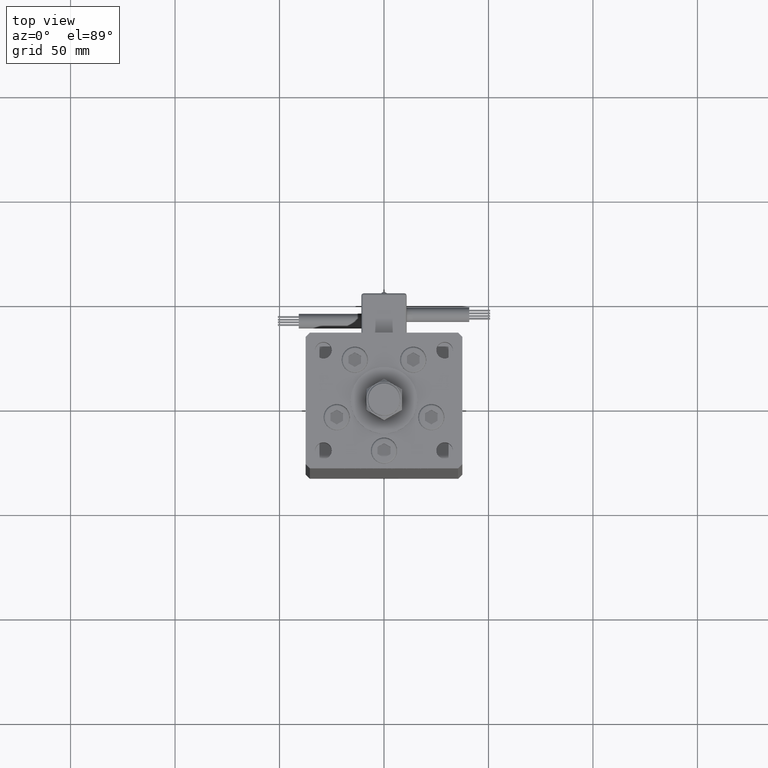
[diagram: clean part render]
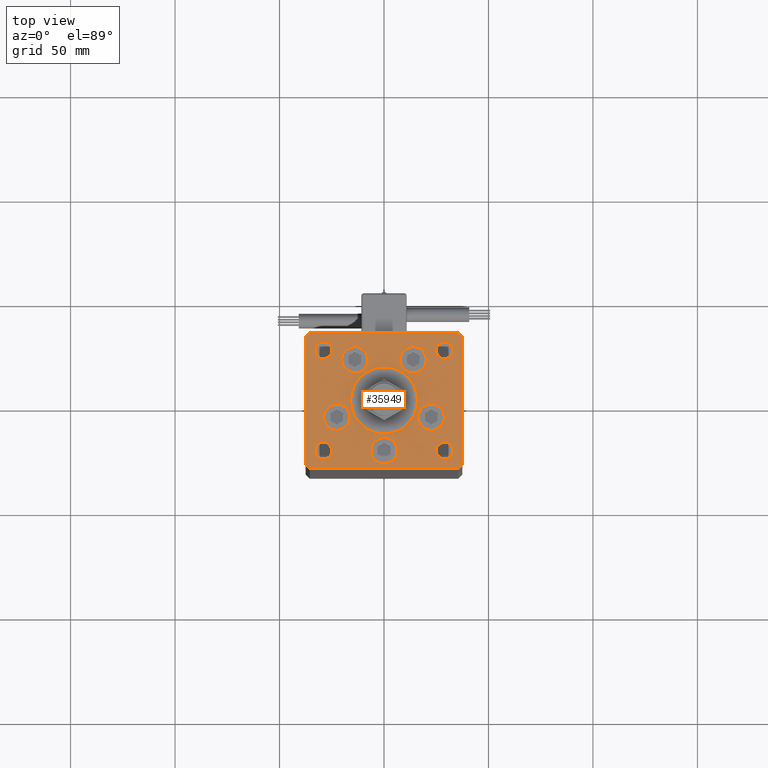
[diagram: same view with one face highlighted and labeled with its STEP entity id]
A machine part, top view. The second image highlights one B-rep face of the part: STEP entity #35949.
In plain terms, the highlighted planar face has unit normal (0, 0, 1).
Its self-contained STEP definition (entity closure, byte-faithful):
#242 = VERTEX_POINT ( 'NONE', #18131 ) ;
#764 = AXIS2_PLACEMENT_3D ( 'NONE', #56575, #3438, #20686 ) ;
#775 = DIRECTION ( 'NONE',  ( 1.000000000000000000, 0.000000000000000000, 0.000000000000000000 ) ) ;
#834 = DIRECTION ( 'NONE',  ( 0.000000000000000000, 0.000000000000000000, 1.000000000000000000 ) ) ;
#878 = FACE_BOUND ( 'NONE', #50576, .T. ) ;
#1060 = CARTESIAN_POINT ( 'NONE',  ( 24.99999999999999645, 24.00000000000000355, 0.000000000000000000 ) ) ;
#1113 = CIRCLE ( 'NONE', #11210, 6.250000000000001776 ) ;
#1548 = VECTOR ( 'NONE', #25541, 1000.000000000000000 ) ;
#1869 = ORIENTED_EDGE ( 'NONE', *, *, #36183, .F. ) ;
#2359 = CIRCLE ( 'NONE', #11510, 6.250000000000000000 ) ;
#2501 = PLANE ( 'NONE',  #32911 ) ;
#2819 = CARTESIAN_POINT ( 'NONE',  ( 22.62741699796953299, -8.000000000000000000, 0.000000000000000000 ) ) ;
#2871 = DIRECTION ( 'NONE',  ( 1.000000000000000000, 0.000000000000000000, 0.000000000000000000 ) ) ;
#2908 = VECTOR ( 'NONE', #35373, 1000.000000000000000 ) ;
#2998 = EDGE_CURVE ( 'NONE', #11109, #43066, #15685, .T. ) ;
#3438 = DIRECTION ( 'NONE',  ( -0.000000000000000000, -0.000000000000000000, -1.000000000000000000 ) ) ;
#3467 = DIRECTION ( 'NONE',  ( 1.000000000000000000, 1.172770800660376149E-15, 0.000000000000000000 ) ) ;
#3502 = AXIS2_PLACEMENT_3D ( 'NONE', #11116, #28652, #32939 ) ;
#3558 = VERTEX_POINT ( 'NONE', #22619 ) ;
#3750 = EDGE_CURVE ( 'NONE', #19561, #56784, #24874, .T. ) ;
#3859 = ORIENTED_EDGE ( 'NONE', *, *, #5200, .F. ) ;
#4612 = CARTESIAN_POINT ( 'NONE',  ( -25.00000000000000000, 24.00000000000000711, 0.000000000000000000 ) ) ;
#4802 = VECTOR ( 'NONE', #42905, 1000.000000000000000 ) ;
#4992 = EDGE_CURVE ( 'NONE', #10361, #30630, #41435, .T. ) ;
#5178 = FACE_OUTER_BOUND ( 'NONE', #37058, .T. ) ;
#5200 = EDGE_CURVE ( 'NONE', #24221, #34448, #45090, .T. ) ;
#5461 = FACE_BOUND ( 'NONE', #22985, .T. ) ;
#6415 = CARTESIAN_POINT ( 'NONE',  ( 37.50000000000000711, -30.49999999999992895, 0.000000000000000000 ) ) ;
#6434 = CARTESIAN_POINT ( 'NONE',  ( 6.250000000000000000, -24.00000000000001066, 0.000000000000000000 ) ) ;
#6643 = VECTOR ( 'NONE', #29895, 1000.000000000000000 ) ;
#7000 = ORIENTED_EDGE ( 'NONE', *, *, #3750, .F. ) ;
#7166 = LINE ( 'NONE', #55434, #1548 ) ;
#7507 = CARTESIAN_POINT ( 'NONE',  ( 28.87741699796953654, -8.000000000000000000, 0.000000000000000000 ) ) ;
#7752 = DIRECTION ( 'NONE',  ( 0.000000000000000000, 1.000000000000000000, 0.000000000000000000 ) ) ;
#8388 = EDGE_LOOP ( 'NONE', ( #36603, #46163 ) ) ;
#8437 = EDGE_LOOP ( 'NONE', ( #17072, #13044 ) ) ;
#8443 = DIRECTION ( 'NONE',  ( -1.000000000000000000, -1.954618001100627573E-16, 0.000000000000000000 ) ) ;
#8537 = AXIS2_PLACEMENT_3D ( 'NONE', #10785, #54745, #32889 ) ;
#8711 = CARTESIAN_POINT ( 'NONE',  ( -25.00000000000000355, -23.99999999999999645, 0.000000000000000000 ) ) ;
#8883 = ORIENTED_EDGE ( 'NONE', *, *, #47351, .F. ) ;
#9082 = EDGE_CURVE ( 'NONE', #56765, #54341, #20792, .T. ) ;
#9176 = CARTESIAN_POINT ( 'NONE',  ( -20.24106857963324302, 19.50000000000000000, 0.000000000000000000 ) ) ;
#9530 = AXIS2_PLACEMENT_3D ( 'NONE', #51433, #24440, #34175 ) ;
#9576 = EDGE_LOOP ( 'NONE', ( #1869, #42500 ) ) ;
#9778 = CARTESIAN_POINT ( 'NONE',  ( 16.37741699796953299, -8.000000000000000000, 0.000000000000000000 ) ) ;
#10065 = FACE_BOUND ( 'NONE', #8437, .T. ) ;
#10361 = VERTEX_POINT ( 'NONE', #12103 ) ;
#10425 = ORIENTED_EDGE ( 'NONE', *, *, #9082, .T. ) ;
#10509 = CARTESIAN_POINT ( 'NONE',  ( 0.000000000000000000, -6.938893903907228378E-15, 0.000000000000000000 ) ) ;
#10757 = EDGE_CURVE ( 'NONE', #56784, #19561, #51843, .T. ) ;
#10785 = CARTESIAN_POINT ( 'NONE',  ( -29.00000000000000000, 24.00000000000000711, 0.000000000000000000 ) ) ;
#10964 = EDGE_CURVE ( 'NONE', #35827, #51012, #25075, .T. ) ;
#11085 = ORIENTED_EDGE ( 'NONE', *, *, #27856, .F. ) ;
#11109 = VERTEX_POINT ( 'NONE', #39161 ) ;
#11116 = CARTESIAN_POINT ( 'NONE',  ( -29.00000000000000000, 24.00000000000000711, 0.000000000000000000 ) ) ;
#11127 = FACE_BOUND ( 'NONE', #9576, .T. ) ;
#11210 = AXIS2_PLACEMENT_3D ( 'NONE', #2819, #51941, #51652 ) ;
#11510 = AXIS2_PLACEMENT_3D ( 'NONE', #54733, #50415, #49843 ) ;
#11699 = CARTESIAN_POINT ( 'NONE',  ( 0.000000000000000000, -6.938893903907228378E-15, 0.000000000000000000 ) ) ;
#11814 = EDGE_CURVE ( 'NONE', #44965, #34731, #33387, .T. ) ;
#11850 = ORIENTED_EDGE ( 'NONE', *, *, #55538, .T. ) ;
#12103 = CARTESIAN_POINT ( 'NONE',  ( -16.37741699796953299, -8.000000000000000000, 0.000000000000000000 ) ) ;
#12143 = VERTEX_POINT ( 'NONE', #47328 ) ;
#12825 = ORIENTED_EDGE ( 'NONE', *, *, #24845, .F. ) ;
#12926 = CARTESIAN_POINT ( 'NONE',  ( -37.50000000000000000, -30.50000000000004263, 0.000000000000000000 ) ) ;
#12980 = VERTEX_POINT ( 'NONE', #42466 ) ;
#13044 = ORIENTED_EDGE ( 'NONE', *, *, #35166, .T. ) ;
#13118 = ORIENTED_EDGE ( 'NONE', *, *, #55176, .F. ) ;
#13666 = CARTESIAN_POINT ( 'NONE',  ( 13.99106857963324124, 19.50000000000000000, 0.000000000000000000 ) ) ;
#13799 = DIRECTION ( 'NONE',  ( 0.000000000000000000, 0.000000000000000000, 1.000000000000000000 ) ) ;
#13845 = AXIS2_PLACEMENT_3D ( 'NONE', #11699, #55656, #39728 ) ;
#13910 = CIRCLE ( 'NONE', #46008, 6.250000000000000000 ) ;
#13987 = CARTESIAN_POINT ( 'NONE',  ( 29.00000000000000355, -23.99999999999999645, 0.000000000000000000 ) ) ;
#14158 = ORIENTED_EDGE ( 'NONE', *, *, #45876, .T. ) ;
#15099 = DIRECTION ( 'NONE',  ( 1.000000000000000000, 0.000000000000000000, 0.000000000000000000 ) ) ;
#15185 = CIRCLE ( 'NONE', #22518, 6.250000000000001776 ) ;
#15292 = VERTEX_POINT ( 'NONE', #28546 ) ;
#15349 = LINE ( 'NONE', #16962, #24749 ) ;
#15560 = DIRECTION ( 'NONE',  ( 0.000000000000000000, 0.000000000000000000, 1.000000000000000000 ) ) ;
#15685 = CIRCLE ( 'NONE', #13845, 16.00000000000000355 ) ;
#15704 = EDGE_CURVE ( 'NONE', #27815, #34871, #50014, .T. ) ;
#16722 = CARTESIAN_POINT ( 'NONE',  ( 35.50000000000000000, 32.49999999999999289, 0.000000000000000000 ) ) ;
#16820 = CARTESIAN_POINT ( 'NONE',  ( 29.00000000000000000, 24.00000000000000355, 0.000000000000000000 ) ) ;
#16962 = CARTESIAN_POINT ( 'NONE',  ( -35.50000000000001421, -32.50000000000000711, 0.000000000000000000 ) ) ;
#17010 = EDGE_CURVE ( 'NONE', #30630, #10361, #15185, .T. ) ;
#17072 = ORIENTED_EDGE ( 'NONE', *, *, #10964, .T. ) ;
#18131 = CARTESIAN_POINT ( 'NONE',  ( -37.50000000000001421, 30.50000000000000000, 0.000000000000000000 ) ) ;
#18366 = DIRECTION ( 'NONE',  ( 1.000000000000000000, 0.000000000000000000, 0.000000000000000000 ) ) ;
#18566 = ORIENTED_EDGE ( 'NONE', *, *, #15704, .F. ) ;
#18662 = VERTEX_POINT ( 'NONE', #35303 ) ;
#18755 = CARTESIAN_POINT ( 'NONE',  ( -28.87741699796953654, -8.000000000000000000, 0.000000000000000000 ) ) ;
#19053 = EDGE_LOOP ( 'NONE', ( #36042, #7000 ) ) ;
#19151 = AXIS2_PLACEMENT_3D ( 'NONE', #13666, #31187, #48718 ) ;
#19455 = CIRCLE ( 'NONE', #34124, 4.000000000000000000 ) ;
#19561 = VERTEX_POINT ( 'NONE', #9176 ) ;
#19753 = FACE_BOUND ( 'NONE', #34249, .T. ) ;
#19816 = CARTESIAN_POINT ( 'NONE',  ( -6.250000000000000000, -24.00000000000001066, 0.000000000000000000 ) ) ;
#20467 = LINE ( 'NONE', #55515, #42670 ) ;
#20686 = DIRECTION ( 'NONE',  ( -1.000000000000000000, 0.000000000000000000, 0.000000000000000000 ) ) ;
#20792 = LINE ( 'NONE', #33711, #4802 ) ;
#21133 = CARTESIAN_POINT ( 'NONE',  ( -29.00000000000000000, -23.99999999999999645, 0.000000000000000000 ) ) ;
#21214 = AXIS2_PLACEMENT_3D ( 'NONE', #46695, #24013, #41251 ) ;
#21604 = VERTEX_POINT ( 'NONE', #22397 ) ;
#22397 = CARTESIAN_POINT ( 'NONE',  ( 20.24106857963324302, 19.50000000000000000, 0.000000000000000000 ) ) ;
#22518 = AXIS2_PLACEMENT_3D ( 'NONE', #44430, #22602, #775 ) ;
#22602 = DIRECTION ( 'NONE',  ( 0.000000000000000000, 0.000000000000000000, 1.000000000000000000 ) ) ;
#22619 = CARTESIAN_POINT ( 'NONE',  ( 25.00000000000000355, -23.99999999999999645, 0.000000000000000000 ) ) ;
#22735 = CARTESIAN_POINT ( 'NONE',  ( -37.50000000000001421, 30.50000000000000000, 0.000000000000000000 ) ) ;
#22985 = EDGE_LOOP ( 'NONE', ( #55263, #25974 ) ) ;
#22993 = DIRECTION ( 'NONE',  ( 1.000000000000000000, 0.000000000000000000, 0.000000000000000000 ) ) ;
#24013 = DIRECTION ( 'NONE',  ( 0.000000000000000000, 0.000000000000000000, 1.000000000000000000 ) ) ;
#24192 = EDGE_CURVE ( 'NONE', #34886, #27700, #55812, .T. ) ;
#24221 = VERTEX_POINT ( 'NONE', #41405 ) ;
#24440 = DIRECTION ( 'NONE',  ( 0.000000000000000000, 0.000000000000000000, 1.000000000000000000 ) ) ;
#24631 = CIRCLE ( 'NONE', #764, 4.000000000000000000 ) ;
#24749 = VECTOR ( 'NONE', #3467, 1000.000000000000000 ) ;
#24845 = EDGE_CURVE ( 'NONE', #34731, #44965, #48501, .T. ) ;
#24874 = CIRCLE ( 'NONE', #21214, 6.250000000000000000 ) ;
#25075 = CIRCLE ( 'NONE', #8537, 4.000000000000000000 ) ;
#25541 = DIRECTION ( 'NONE',  ( 0.7071067811865463515, 0.7071067811865487940, 0.000000000000000000 ) ) ;
#25974 = ORIENTED_EDGE ( 'NONE', *, *, #31457, .T. ) ;
#26019 = DIRECTION ( 'NONE',  ( 1.000000000000000000, 0.000000000000000000, 0.000000000000000000 ) ) ;
#26675 = ORIENTED_EDGE ( 'NONE', *, *, #28179, .T. ) ;
#27087 = AXIS2_PLACEMENT_3D ( 'NONE', #29680, #29401, #42592 ) ;
#27325 = FACE_BOUND ( 'NONE', #50712, .T. ) ;
#27700 = VERTEX_POINT ( 'NONE', #6434 ) ;
#27815 = VERTEX_POINT ( 'NONE', #7507 ) ;
#27856 = EDGE_CURVE ( 'NONE', #34448, #24221, #40983, .T. ) ;
#28179 = EDGE_CURVE ( 'NONE', #38554, #15292, #7166, .T. ) ;
#28298 = CIRCLE ( 'NONE', #3502, 4.000000000000000000 ) ;
#28546 = CARTESIAN_POINT ( 'NONE',  ( 37.50000000000000711, -30.49999999999992895, 0.000000000000000000 ) ) ;
#28652 = DIRECTION ( 'NONE',  ( -0.000000000000000000, -0.000000000000000000, -1.000000000000000000 ) ) ;
#28784 = CARTESIAN_POINT ( 'NONE',  ( 0.000000000000000000, -24.00000000000001066, 0.000000000000000000 ) ) ;
#29383 = DIRECTION ( 'NONE',  ( -0.7071067811865524577, -0.7071067811865426878, 0.000000000000000000 ) ) ;
#29385 = VERTEX_POINT ( 'NONE', #41864 ) ;
#29401 = DIRECTION ( 'NONE',  ( 0.000000000000000000, 0.000000000000000000, 1.000000000000000000 ) ) ;
#29680 = CARTESIAN_POINT ( 'NONE',  ( -13.99106857963324124, 19.50000000000000000, 0.000000000000000000 ) ) ;
#29895 = DIRECTION ( 'NONE',  ( 0.7071067811865512365, -0.7071067811865439090, 0.000000000000000000 ) ) ;
#30630 = VERTEX_POINT ( 'NONE', #18755 ) ;
#30713 = VECTOR ( 'NONE', #7752, 1000.000000000000000 ) ;
#30928 = DIRECTION ( 'NONE',  ( 0.000000000000000000, 0.000000000000000000, 1.000000000000000000 ) ) ;
#31029 = DIRECTION ( 'NONE',  ( 0.000000000000000000, 0.000000000000000000, 1.000000000000000000 ) ) ;
#31187 = DIRECTION ( 'NONE',  ( 0.000000000000000000, 0.000000000000000000, 1.000000000000000000 ) ) ;
#31457 = EDGE_CURVE ( 'NONE', #3558, #36805, #24631, .T. ) ;
#32465 = EDGE_LOOP ( 'NONE', ( #32629, #13118 ) ) ;
#32560 = CIRCLE ( 'NONE', #51801, 16.00000000000000355 ) ;
#32629 = ORIENTED_EDGE ( 'NONE', *, *, #2998, .F. ) ;
#32889 = DIRECTION ( 'NONE',  ( -1.000000000000000000, 0.000000000000000000, 0.000000000000000000 ) ) ;
#32911 = AXIS2_PLACEMENT_3D ( 'NONE', #49142, #37546, #22993 ) ;
#32939 = DIRECTION ( 'NONE',  ( -1.000000000000000000, 0.000000000000000000, 0.000000000000000000 ) ) ;
#33387 = CIRCLE ( 'NONE', #9530, 3.999999999999996447 ) ;
#33711 = CARTESIAN_POINT ( 'NONE',  ( 37.50000000000000711, 30.50000000000001421, 0.000000000000000000 ) ) ;
#34088 = AXIS2_PLACEMENT_3D ( 'NONE', #35325, #31029, #48558 ) ;
#34124 = AXIS2_PLACEMENT_3D ( 'NONE', #13987, #36099, #52514 ) ;
#34175 = DIRECTION ( 'NONE',  ( 1.000000000000000000, 0.000000000000000000, 0.000000000000000000 ) ) ;
#34249 = EDGE_LOOP ( 'NONE', ( #3859, #11085 ) ) ;
#34448 = VERTEX_POINT ( 'NONE', #1060 ) ;
#34630 = DIRECTION ( 'NONE',  ( 0.000000000000000000, 0.000000000000000000, 1.000000000000000000 ) ) ;
#34731 = VERTEX_POINT ( 'NONE', #37169 ) ;
#34871 = VERTEX_POINT ( 'NONE', #9778 ) ;
#34886 = VERTEX_POINT ( 'NONE', #19816 ) ;
#35039 = CARTESIAN_POINT ( 'NONE',  ( 35.50000000000001421, -32.49999999999992184, 0.000000000000000000 ) ) ;
#35166 = EDGE_CURVE ( 'NONE', #51012, #35827, #28298, .T. ) ;
#35303 = CARTESIAN_POINT ( 'NONE',  ( 7.741068579633241242, 19.50000000000000000, 0.000000000000000000 ) ) ;
#35325 = CARTESIAN_POINT ( 'NONE',  ( -22.62741699796953299, -8.000000000000000000, 0.000000000000000000 ) ) ;
#35373 = DIRECTION ( 'NONE',  ( 2.275047181608926165E-16, -1.000000000000000000, 0.000000000000000000 ) ) ;
#35525 = CARTESIAN_POINT ( 'NONE',  ( 22.62741699796953299, -8.000000000000000000, 0.000000000000000000 ) ) ;
#35639 = DIRECTION ( 'NONE',  ( 1.000000000000000000, 0.000000000000000000, 0.000000000000000000 ) ) ;
#35827 = VERTEX_POINT ( 'NONE', #4612 ) ;
#35949 = ADVANCED_FACE ( 'NONE', ( #50486, #40507, #11127, #40783, #27325, #53183, #10065, #19753, #878, #5178, #5461 ), #2501, .T. ) ;
#36042 = ORIENTED_EDGE ( 'NONE', *, *, #10757, .F. ) ;
#36099 = DIRECTION ( 'NONE',  ( -0.000000000000000000, -0.000000000000000000, -1.000000000000000000 ) ) ;
#36183 = EDGE_CURVE ( 'NONE', #21604, #18662, #39330, .T. ) ;
#36603 = ORIENTED_EDGE ( 'NONE', *, *, #4992, .F. ) ;
#36805 = VERTEX_POINT ( 'NONE', #55750 ) ;
#37058 = EDGE_LOOP ( 'NONE', ( #44696, #53282, #26675, #11850, #10425, #42920, #14158, #56016 ) ) ;
#37169 = CARTESIAN_POINT ( 'NONE',  ( -32.99999999999999289, -23.99999999999999645, 0.000000000000000000 ) ) ;
#37546 = DIRECTION ( 'NONE',  ( -0.000000000000000000, 0.000000000000000000, 1.000000000000000000 ) ) ;
#38361 = AXIS2_PLACEMENT_3D ( 'NONE', #28784, #15560, #54935 ) ;
#38401 = EDGE_CURVE ( 'NONE', #12143, #38554, #15349, .T. ) ;
#38554 = VERTEX_POINT ( 'NONE', #35039 ) ;
#38888 = LINE ( 'NONE', #48081, #49988 ) ;
#38994 = AXIS2_PLACEMENT_3D ( 'NONE', #35525, #30928, #2871 ) ;
#39161 = CARTESIAN_POINT ( 'NONE',  ( -16.00000000000000355, -6.938893903907228378E-15, 0.000000000000000000 ) ) ;
#39303 = CARTESIAN_POINT ( 'NONE',  ( 16.00000000000000355, -4.979459025271462852E-15, 0.000000000000000000 ) ) ;
#39330 = CIRCLE ( 'NONE', #19151, 6.250000000000000000 ) ;
#39728 = DIRECTION ( 'NONE',  ( 1.000000000000000000, 0.000000000000000000, 0.000000000000000000 ) ) ;
#40185 = CARTESIAN_POINT ( 'NONE',  ( 0.000000000000000000, -24.00000000000001066, 0.000000000000000000 ) ) ;
#40237 = CARTESIAN_POINT ( 'NONE',  ( -33.00000000000000000, 24.00000000000000711, 0.000000000000000000 ) ) ;
#40507 = FACE_BOUND ( 'NONE', #19053, .T. ) ;
#40783 = FACE_BOUND ( 'NONE', #40827, .T. ) ;
#40827 = EDGE_LOOP ( 'NONE', ( #18566, #42137 ) ) ;
#40847 = EDGE_CURVE ( 'NONE', #18662, #21604, #2359, .T. ) ;
#40983 = CIRCLE ( 'NONE', #45577, 4.000000000000000000 ) ;
#41251 = DIRECTION ( 'NONE',  ( 1.000000000000000000, 0.000000000000000000, 0.000000000000000000 ) ) ;
#41405 = CARTESIAN_POINT ( 'NONE',  ( 33.00000000000000000, 24.00000000000000355, 0.000000000000000000 ) ) ;
#41435 = CIRCLE ( 'NONE', #34088, 6.250000000000001776 ) ;
#41864 = CARTESIAN_POINT ( 'NONE',  ( -37.50000000000000000, -30.50000000000004263, 0.000000000000000000 ) ) ;
#42137 = ORIENTED_EDGE ( 'NONE', *, *, #47801, .F. ) ;
#42466 = CARTESIAN_POINT ( 'NONE',  ( -35.50000000000000711, 32.49999999999997868, 0.000000000000000000 ) ) ;
#42500 = ORIENTED_EDGE ( 'NONE', *, *, #40847, .F. ) ;
#42592 = DIRECTION ( 'NONE',  ( 1.000000000000000000, 0.000000000000000000, 0.000000000000000000 ) ) ;
#42670 = VECTOR ( 'NONE', #29383, 1000.000000000000000 ) ;
#42905 = DIRECTION ( 'NONE',  ( -0.7071067811865524577, 0.7071067811865426878, 0.000000000000000000 ) ) ;
#42920 = ORIENTED_EDGE ( 'NONE', *, *, #44585, .T. ) ;
#43066 = VERTEX_POINT ( 'NONE', #39303 ) ;
#43242 = DIRECTION ( 'NONE',  ( 1.000000000000000000, 0.000000000000000000, 0.000000000000000000 ) ) ;
#43284 = AXIS2_PLACEMENT_3D ( 'NONE', #16820, #47562, #43242 ) ;
#44430 = CARTESIAN_POINT ( 'NONE',  ( -22.62741699796953299, -8.000000000000000000, 0.000000000000000000 ) ) ;
#44585 = EDGE_CURVE ( 'NONE', #54341, #12980, #38888, .T. ) ;
#44696 = ORIENTED_EDGE ( 'NONE', *, *, #48579, .T. ) ;
#44965 = VERTEX_POINT ( 'NONE', #8711 ) ;
#45090 = CIRCLE ( 'NONE', #43284, 4.000000000000000000 ) ;
#45577 = AXIS2_PLACEMENT_3D ( 'NONE', #48853, #13799, #35639 ) ;
#45876 = EDGE_CURVE ( 'NONE', #12980, #242, #20467, .T. ) ;
#46008 = AXIS2_PLACEMENT_3D ( 'NONE', #40185, #834, #18366 ) ;
#46163 = ORIENTED_EDGE ( 'NONE', *, *, #17010, .F. ) ;
#46625 = CARTESIAN_POINT ( 'NONE',  ( -7.741068579633241242, 19.50000000000000000, 0.000000000000000000 ) ) ;
#46695 = CARTESIAN_POINT ( 'NONE',  ( -13.99106857963324124, 19.50000000000000000, 0.000000000000000000 ) ) ;
#46967 = EDGE_CURVE ( 'NONE', #242, #29385, #48885, .T. ) ;
#47328 = CARTESIAN_POINT ( 'NONE',  ( -35.50000000000001421, -32.50000000000000711, 0.000000000000000000 ) ) ;
#47351 = EDGE_CURVE ( 'NONE', #27700, #34886, #13910, .T. ) ;
#47562 = DIRECTION ( 'NONE',  ( 0.000000000000000000, 0.000000000000000000, 1.000000000000000000 ) ) ;
#47801 = EDGE_CURVE ( 'NONE', #34871, #27815, #1113, .T. ) ;
#47985 = EDGE_CURVE ( 'NONE', #36805, #3558, #19455, .T. ) ;
#48081 = CARTESIAN_POINT ( 'NONE',  ( 35.50000000000000000, 32.49999999999999289, 0.000000000000000000 ) ) ;
#48501 = CIRCLE ( 'NONE', #53111, 3.999999999999996447 ) ;
#48558 = DIRECTION ( 'NONE',  ( 1.000000000000000000, 0.000000000000000000, 0.000000000000000000 ) ) ;
#48579 = EDGE_CURVE ( 'NONE', #29385, #12143, #56040, .T. ) ;
#48718 = DIRECTION ( 'NONE',  ( 1.000000000000000000, 0.000000000000000000, 0.000000000000000000 ) ) ;
#48853 = CARTESIAN_POINT ( 'NONE',  ( 29.00000000000000000, 24.00000000000000355, 0.000000000000000000 ) ) ;
#48885 = LINE ( 'NONE', #22735, #2908 ) ;
#49142 = CARTESIAN_POINT ( 'NONE',  ( 0.000000000000000000, 0.000000000000000000, 0.000000000000000000 ) ) ;
#49843 = DIRECTION ( 'NONE',  ( 1.000000000000000000, 0.000000000000000000, 0.000000000000000000 ) ) ;
#49988 = VECTOR ( 'NONE', #8443, 1000.000000000000000 ) ;
#50014 = CIRCLE ( 'NONE', #38994, 6.250000000000001776 ) ;
#50415 = DIRECTION ( 'NONE',  ( 0.000000000000000000, 0.000000000000000000, 1.000000000000000000 ) ) ;
#50486 = FACE_BOUND ( 'NONE', #32465, .T. ) ;
#50576 = EDGE_LOOP ( 'NONE', ( #54818, #12825 ) ) ;
#50712 = EDGE_LOOP ( 'NONE', ( #8883, #50835 ) ) ;
#50835 = ORIENTED_EDGE ( 'NONE', *, *, #24192, .F. ) ;
#51012 = VERTEX_POINT ( 'NONE', #40237 ) ;
#51151 = LINE ( 'NONE', #6415, #30713 ) ;
#51433 = CARTESIAN_POINT ( 'NONE',  ( -29.00000000000000000, -23.99999999999999645, 0.000000000000000000 ) ) ;
#51652 = DIRECTION ( 'NONE',  ( 1.000000000000000000, 0.000000000000000000, 0.000000000000000000 ) ) ;
#51801 = AXIS2_PLACEMENT_3D ( 'NONE', #10509, #54203, #15099 ) ;
#51843 = CIRCLE ( 'NONE', #27087, 6.250000000000000000 ) ;
#51941 = DIRECTION ( 'NONE',  ( 0.000000000000000000, 0.000000000000000000, 1.000000000000000000 ) ) ;
#52514 = DIRECTION ( 'NONE',  ( -1.000000000000000000, 0.000000000000000000, 0.000000000000000000 ) ) ;
#53111 = AXIS2_PLACEMENT_3D ( 'NONE', #21133, #34630, #26019 ) ;
#53183 = FACE_BOUND ( 'NONE', #8388, .T. ) ;
#53282 = ORIENTED_EDGE ( 'NONE', *, *, #38401, .T. ) ;
#54203 = DIRECTION ( 'NONE',  ( 0.000000000000000000, 0.000000000000000000, 1.000000000000000000 ) ) ;
#54341 = VERTEX_POINT ( 'NONE', #16722 ) ;
#54703 = CARTESIAN_POINT ( 'NONE',  ( 37.50000000000000711, 30.50000000000001421, 0.000000000000000000 ) ) ;
#54733 = CARTESIAN_POINT ( 'NONE',  ( 13.99106857963324124, 19.50000000000000000, 0.000000000000000000 ) ) ;
#54745 = DIRECTION ( 'NONE',  ( -0.000000000000000000, -0.000000000000000000, -1.000000000000000000 ) ) ;
#54818 = ORIENTED_EDGE ( 'NONE', *, *, #11814, .F. ) ;
#54935 = DIRECTION ( 'NONE',  ( 1.000000000000000000, 0.000000000000000000, 0.000000000000000000 ) ) ;
#55176 = EDGE_CURVE ( 'NONE', #43066, #11109, #32560, .T. ) ;
#55263 = ORIENTED_EDGE ( 'NONE', *, *, #47985, .T. ) ;
#55434 = CARTESIAN_POINT ( 'NONE',  ( 35.50000000000001421, -32.49999999999992184, 0.000000000000000000 ) ) ;
#55515 = CARTESIAN_POINT ( 'NONE',  ( -35.50000000000000711, 32.49999999999997868, 0.000000000000000000 ) ) ;
#55538 = EDGE_CURVE ( 'NONE', #15292, #56765, #51151, .T. ) ;
#55656 = DIRECTION ( 'NONE',  ( 0.000000000000000000, 0.000000000000000000, 1.000000000000000000 ) ) ;
#55750 = CARTESIAN_POINT ( 'NONE',  ( 33.00000000000000000, -23.99999999999999645, 0.000000000000000000 ) ) ;
#55812 = CIRCLE ( 'NONE', #38361, 6.250000000000000000 ) ;
#56016 = ORIENTED_EDGE ( 'NONE', *, *, #46967, .T. ) ;
#56040 = LINE ( 'NONE', #12926, #6643 ) ;
#56575 = CARTESIAN_POINT ( 'NONE',  ( 29.00000000000000355, -23.99999999999999645, 0.000000000000000000 ) ) ;
#56765 = VERTEX_POINT ( 'NONE', #54703 ) ;
#56784 = VERTEX_POINT ( 'NONE', #46625 ) ;